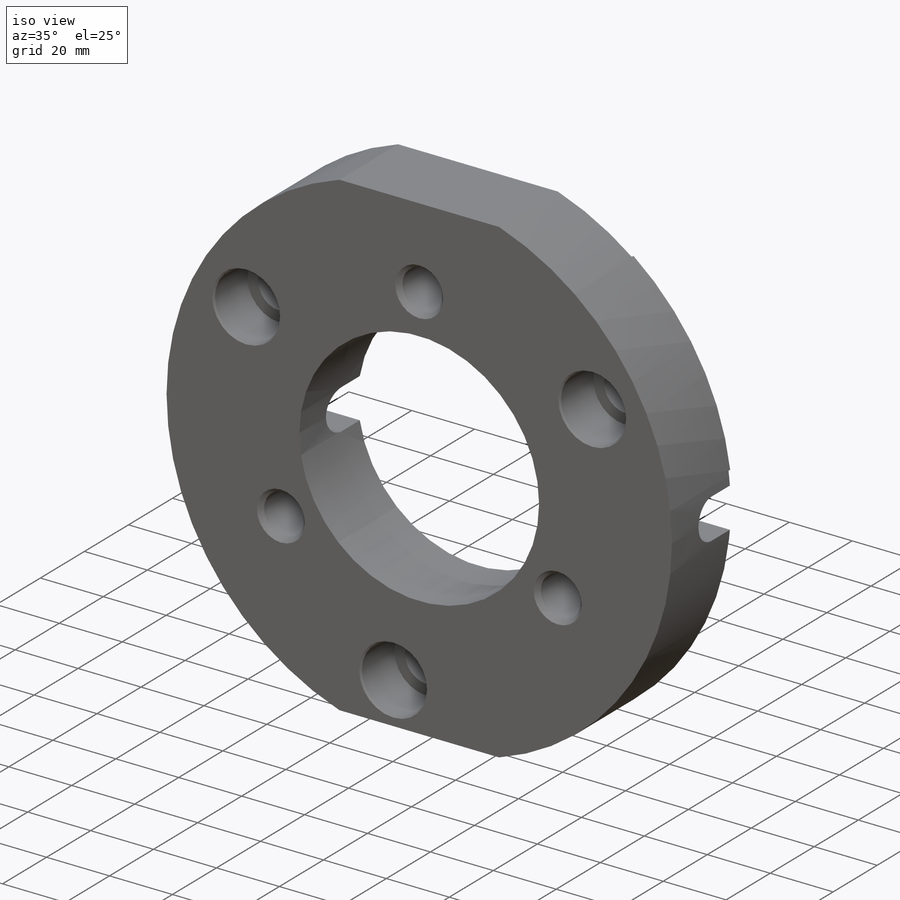
[diagram: iso view]
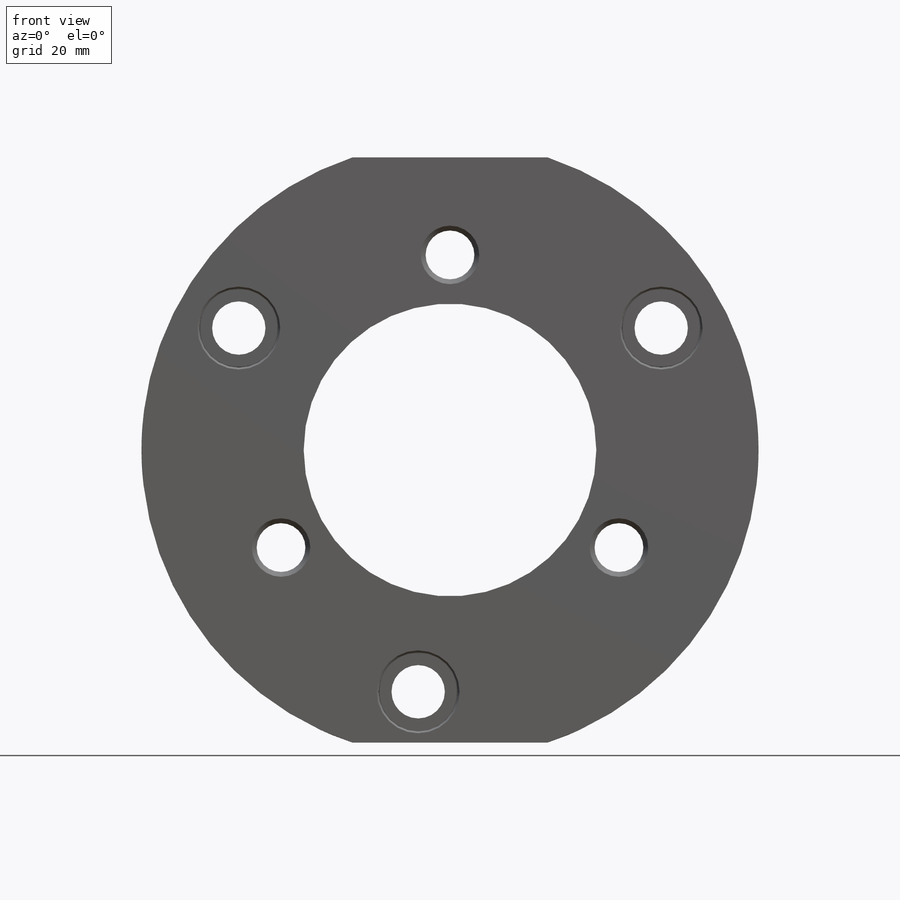
[diagram: front view]
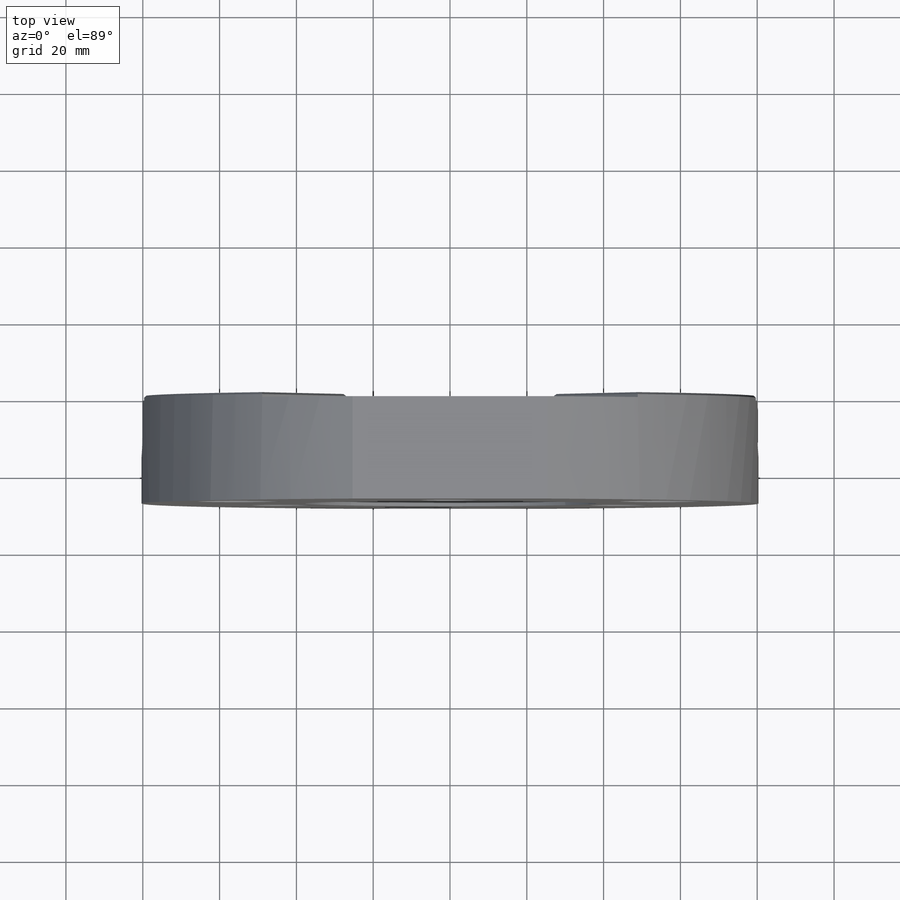
[diagram: top view]
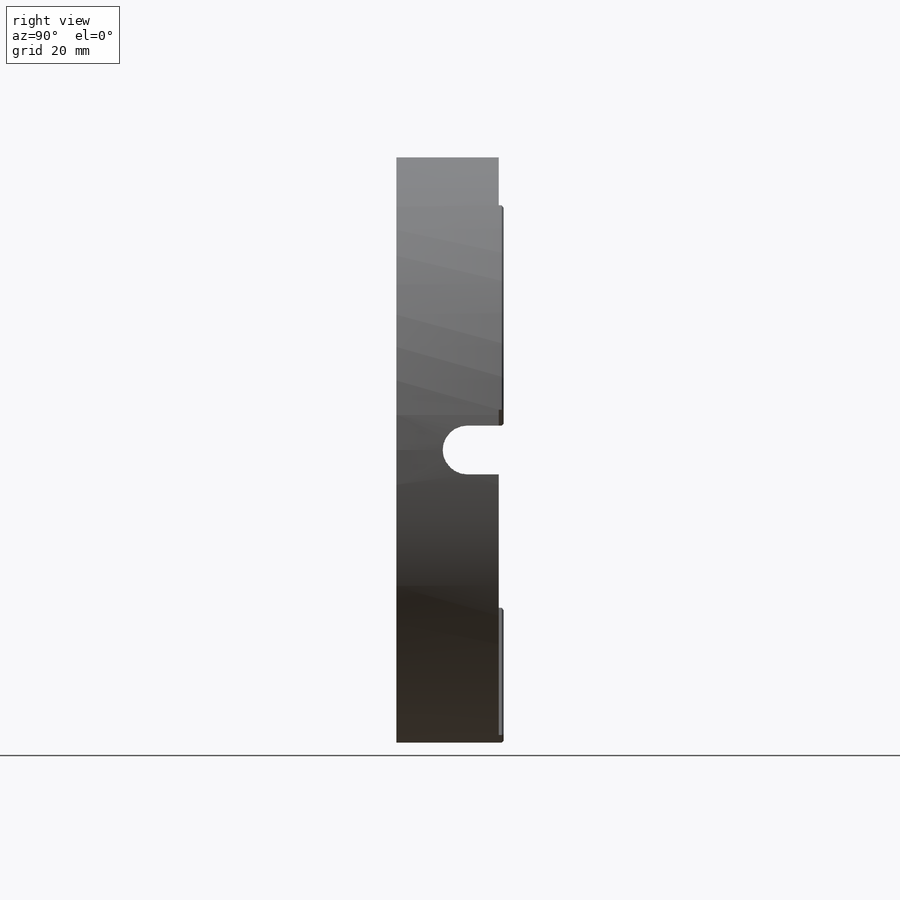
[diagram: right view]
SOLIDWORKS PART (.sldprt)
format: sldprt  version: not decoded by parser v0  size: 359,424 bytes
history: native  units: mm
features: sketch x9, cut_extrude x4, hole x2, material x1, extrude x1, chamfer x1 + 1 further entry (+13 scaffold rows collapsed)
feature tree (32):
  scaffold x13  (default folders/planes/origin — collapsed)
  material  "AISI 1020 Steel, Cold Rolled"
  "Origin"  ID=-1
  sketch  "Sketch1"  dims[D1=152.4mm D2=50.8mm]
  extrude  "Extrude1"  Depth=27.94mm
  hole  "CBORE for 1/2 Socket Head Cap Screw1"  Diameter=13.89126mm Depth=27.94mm
  sketch  "Sketch4"  dims[c1.D2=127.0mm c1.D1=31.75mm c1.D3=~59.009457mm c2.D3=7.5deg c2.D1=120.0deg]
  sketch  "Sketch3"  dims[hole-wizard template sketch: 41 standard entries collapsed; hole parameters kept: c12.Thru Hole Dia.=~13.89126mm c12.Thru Hole Depth=27.94mm c12.C'Bore Dia.=20.6375mm c12.C'Bore Depth=15.24mm c12.Near C'Sink Dia.=21.59mm c12.D6=~4.399409mm c12.Near C'Sink Angle=82.0deg c12.Far C'Sink Dia.=15.24mm c12.D8=~2.963249mm c12.Far C'Sink Angle=82.0deg]
  sketch  "Sketch6"  dims[D1=76.2mm]
  cut_extrude  "Cut-Extrude1"  [1 undecoded]
  sketch  "Sketch10"  dims[D1=12.7mm D2=9.525mm]
  cut_extrude  "Cut-Extrude3"  [1 undecoded]
  sketch  "Sketch9"  dims[c1.D1=30.734mm c2.D1=22.5deg c2.D2=~32.487385mm c3.D2=45.0deg c3.D3=~35.871853mm c4.D3=75.0deg c4.D4=~35.871853mm c5.D4=45.0deg c5.D5=~28.459054mm c6.D5=75.0deg c6.D6=~35.871853mm c7.D6=45.0deg]
  cut_extrude  "Cut-Extrude2"  Depth=1.27mm
  hole  "1/2-20 Tapped Hole1"  Diameter=12.7mm Depth=27.94mm
  sketch  "Sketch8"  dims[c1.D1=101.6mm c1.D2=63.5mm c2.D2=120.0deg]
  sketch  "Sketch7"  dims[hole-wizard template sketch: 54 standard entries collapsed; hole parameters kept: c17.Thread Major Dia.=12.7mm c17.Thru Tap Drill Depth=27.94mm c17.Near C'Sink Dia.=15.24mm c17.D4=~3.666174mm c17.Near C'Sink Angle=82.0deg]
  sketch  "Sketch11"  dims[D1=88.9mm]
  cut_extrude  "Cut-Extrude4"  [1 undecoded]
  chamfer  "Chamfer1"  Distance=0.508mm Angle=45deg
decode coverage: 14 of 17 modeling features carry decoded parameters; 1 rows unclassified (native names shown)
note: ~ marks probable driven/reference dimensions
note: 3 parameter values undecoded
summary: no parameter record found for 3 features
note: suppression state not decoded; provenance and decode notes live in map.json
